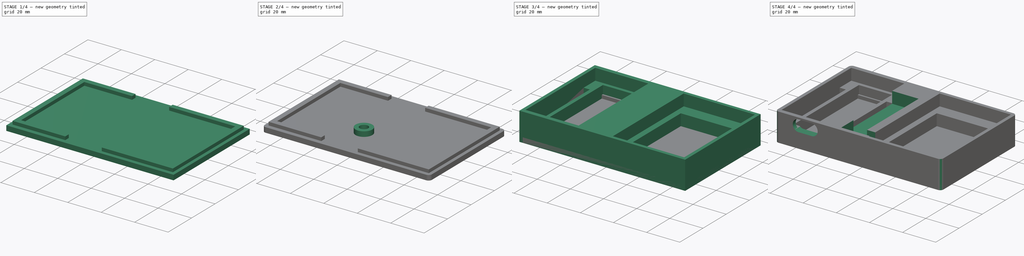
[diagram: build sequence overview — one tinted view per stage of 4, left to right]
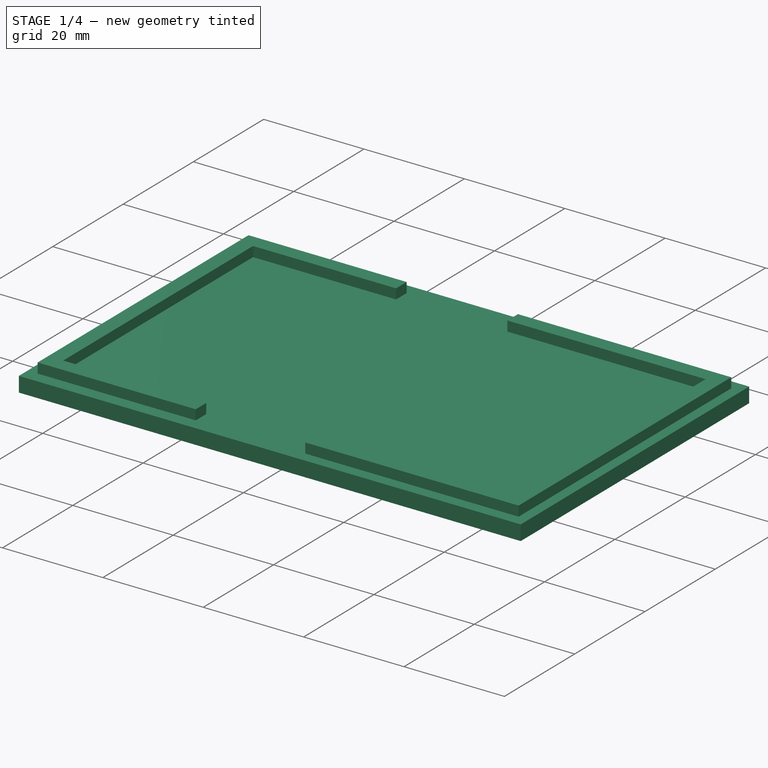
[diagram: stage 1 of 4 — iso view after this stage's code; geometry added in this stage tinted green]
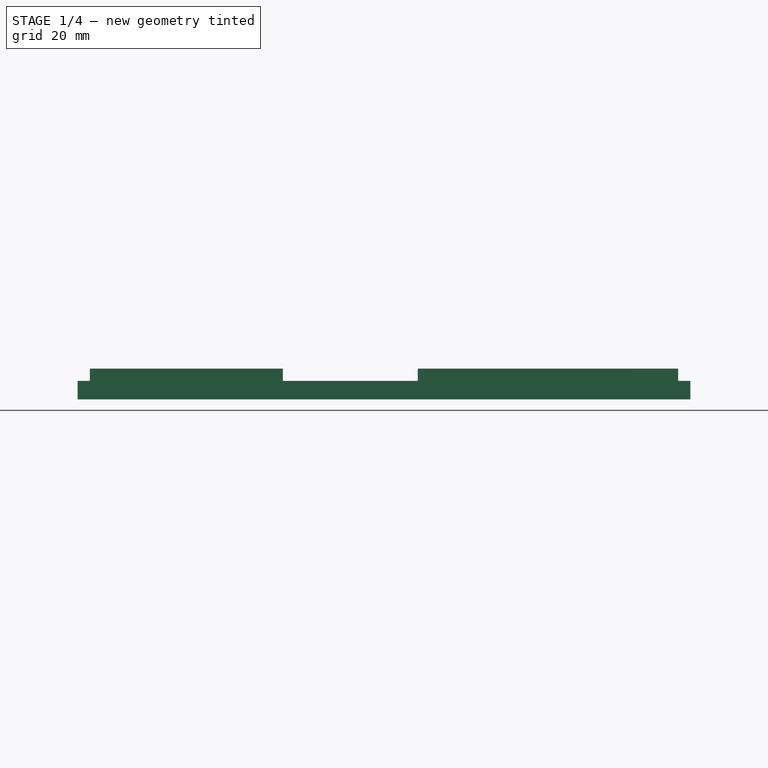
[diagram: stage 1 of 4 — front view after this stage's code; geometry added in this stage tinted green]
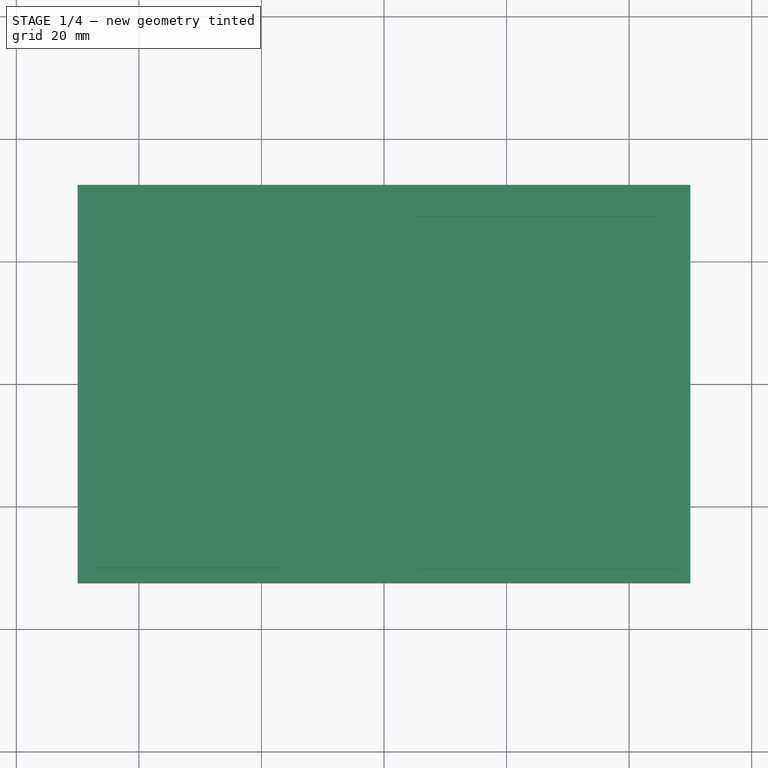
[diagram: stage 1 of 4 — top view after this stage's code; geometry added in this stage tinted green]
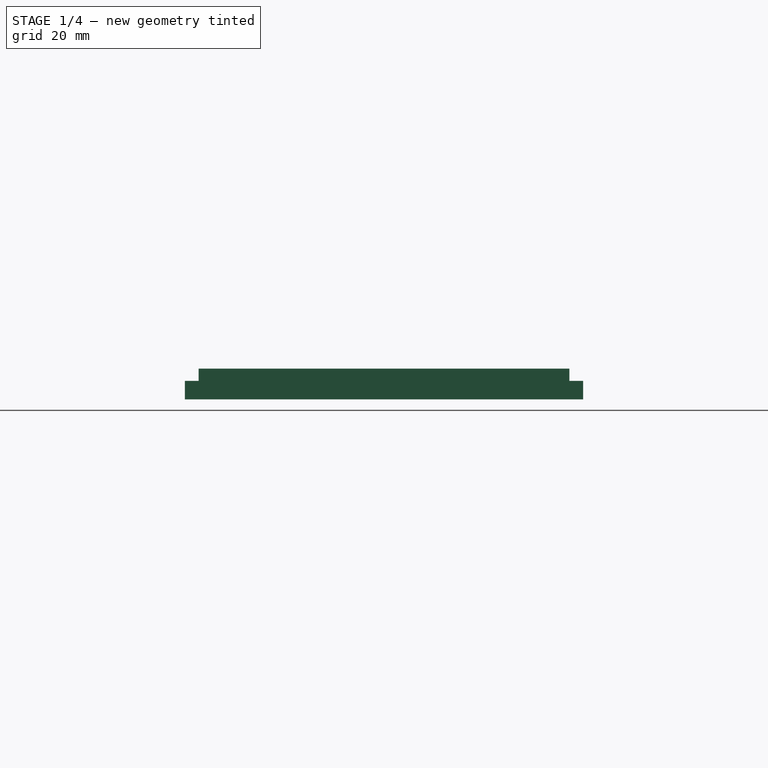
[diagram: stage 1 of 4 — right view after this stage's code; geometry added in this stage tinted green]
FCSTD DOCUMENT  (FreeCAD 0.18.4R)
Label: card-auth
License: All rights reserved
LicenseURL: http://en.wikipedia.org/wiki/All_rights_reserved
objects: Sketcher::SketchObject×10, PartDesign::Pocket×6, PartDesign::Pad×4, PartDesign::Fillet×3, PartDesign::Body×2
note: 35 computed .brp shape members not serialized (recipe doc carries the construction recipe); baked Part::Feature solids carry a one-line shape summary decoded from their .brp

FEATURE [PartDesign::Body] Body
  Group = -> [Sketch,Pad,Sketch001,Pocket,Sketch002,Pocket001,Sketch003,Pocket002,Sketch004,Pocket003,Sketch005,Pocket004,Fillet]
  Origin = -> Origin
  Tip = -> Fillet
FEATURE [Sketcher::SketchObject] Sketch006
  MapMode = 5
  Support = -> [XY_Plane001]
  sketch-geometry (4):
    g0: LineSegment StartX=-50 StartY=32.5 StartZ=0 EndX=50 EndY=32.5 EndZ=0
    g1: LineSegment StartX=50 StartY=32.5 StartZ=0 EndX=50 EndY=-32.5 EndZ=0
    g2: LineSegment StartX=50 StartY=-32.5 StartZ=0 EndX=-50 EndY=-32.5 EndZ=0
    g3: LineSegment StartX=-50 StartY=-32.5 StartZ=0 EndX=-50 EndY=32.5 EndZ=0
  constraints (10):
    c: Coincident(g0,g1)
    c: Coincident(g1,g2)
    c: Coincident(g2,g3)
    c: Coincident(g3,g0)
    c: Horizontal(g2)
    c: Vertical(g1)
    c: Symmetric(g0,g0,g-2)
    c: DistanceY(g3,g3) = 65
    c: Symmetric(g0,g2,g-1)
    c: DistanceX(g0,g0) = 100
FEATURE [PartDesign::Pad] Pad001
  Length = 3
  Length2 = 100
  Profile = -> Sketch006
  Type = 0
FEATURE [Sketcher::SketchObject] Sketch007
  MapMode = 5
  Placement = pos=(0,0,3) rot=(0,0,1;0rad)
  Support = -> [Pad001]
  sketch-geometry (16):
    g0: LineSegment StartX=-48 StartY=30 StartZ=0 EndX=-16.5 EndY=30 EndZ=0
    g1: LineSegment StartX=-16.5 StartY=-30 StartZ=0 EndX=-48 EndY=-30 EndZ=0
    g2: LineSegment StartX=-48 StartY=-30 StartZ=0 EndX=-48 EndY=30 EndZ=0
    g3: LineSegment StartX=-16.5 StartY=-30 StartZ=0 EndX=-16.5 EndY=-27 EndZ=0
    g4: LineSegment StartX=-16.5 StartY=-27 StartZ=0 EndX=-45 EndY=-27 EndZ=0
    g5: LineSegment StartX=-45 StartY=-27 StartZ=0 EndX=-45 EndY=27 EndZ=0
    g6: LineSegment StartX=-45 StartY=27 StartZ=0 EndX=-16.5 EndY=27 EndZ=0
    g7: LineSegment StartX=-16.5 StartY=27 StartZ=0 EndX=-16.5 EndY=30 EndZ=0
    g8: LineSegment StartX=5.5 StartY=30.25 StartZ=0 EndX=48 EndY=30.25 EndZ=0
    g9: LineSegment StartX=48 StartY=30.25 StartZ=0 EndX=48 EndY=-30.25 EndZ=0
    g10: LineSegment StartX=48 StartY=-30.25 StartZ=0 EndX=5.5 EndY=-30.25 EndZ=0
    g11: LineSegment StartX=5.5 StartY=30.25 StartZ=0 EndX=5.5 EndY=27.25 EndZ=0
    g12: LineSegment StartX=5.5 StartY=27.25 StartZ=0 EndX=45 EndY=27.25 EndZ=0
    g13: LineSegment StartX=45 StartY=27.25 StartZ=0 EndX=45 EndY=-27.25 EndZ=0
    g14: LineSegment StartX=45 StartY=-27.25 StartZ=0 EndX=5.5 EndY=-27.25 EndZ=0
    g15: LineSegment StartX=5.5 StartY=-27.25 StartZ=0 EndX=5.5 EndY=-30.25 EndZ=0
  constraints (45):
    c: Coincident(g1,g2)
    c: Coincident(g2,g0)
    c: Horizontal(g0)
    c: Horizontal(g1)
    c: Vertical(g2)
    c: Symmetric(g1,g0,g-1)
    c: DistanceX(g0,g-1) = 16.5
    c: DistanceX(g0,g0) = 31.5
    c: Coincident(g1,g3)
    c: Coincident(g3,g4)
    c: Horizontal(g4)
    c: Coincident(g4,g5)
    c: Vertical(g5)
    c: Coincident(g5,g6)
    c: Horizontal(g6)
    c: Coincident(g6,g7)
    c: Coincident(g7,g0)
    c: Vertical(g7)
    c: DistanceY(g7,g7) = 3
    c: Equal(g3,g7)
    c: DistanceX(g4,g4) = 28.5
    c: Vertical(g3)
    c: DistanceY(g2,g2) = 60
    c: Coincident(g8,g9)
    c: Coincident(g9,g10)
    c: Horizontal(g8)
    c: Horizontal(g10)
    c: Coincident(g8,g11)
    c: Coincident(g11,g12)
    c: Horizontal(g12)
    c: Coincident(g12,g13)
    c: Coincident(g13,g14)
    c: Horizontal(g14)
    c: Coincident(g14,g15)
    c: Coincident(g15,g10)
    c: Vertical(g15)
    c: Vertical(g11)
    c: DistanceY(g9,g9) = 60.5
    c: Symmetric(g9,g8,g-1)
    c: DistanceX(g12,g8) = 3
    c: DistanceY(g12,g8) = 3
    c: Symmetric(g12,g13,g-1)
    c: DistanceX(g-1,g8) = 48
    c: DistanceX(g8,g8) = 42.5
    c: Equal(g8,g10)
FEATURE [PartDesign::Pad] Pad002
  BaseFeature = -> Pad001
  Length = 2
  Length2 = 100
  Profile = -> Sketch007
  Type = 0
FEATURE [PartDesign::Fillet] Fillet002
  Base = -> Pad001 [Edge1,Edge8,Edge2,Edge5]
  BaseFeature = -> Pad001
  Radius = 2
FEATURE [PartDesign::Body] Body001
  Group = -> [Sketch006,Pad001,Sketch007,Pad002,Fillet001,Sketch009,Pad003,Sketch010,Pocket005,Fillet002]
  Origin = -> Origin001
  Placement = pos=(0,0,20) rot=(1,0,0;3.14159rad)
  Tip = -> Fillet002
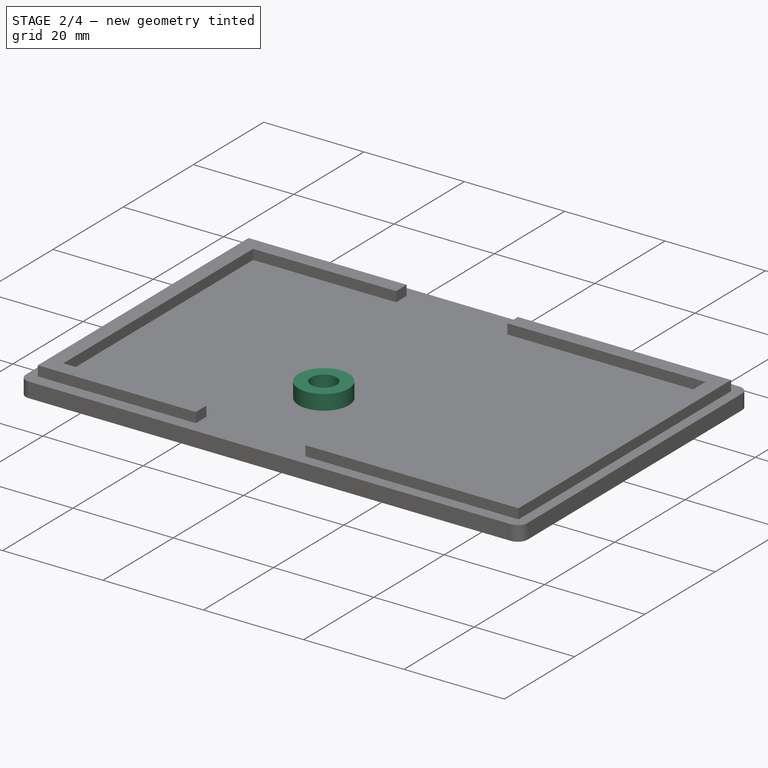
[diagram: stage 2 of 4 — iso view after this stage's code; geometry added in this stage tinted green]
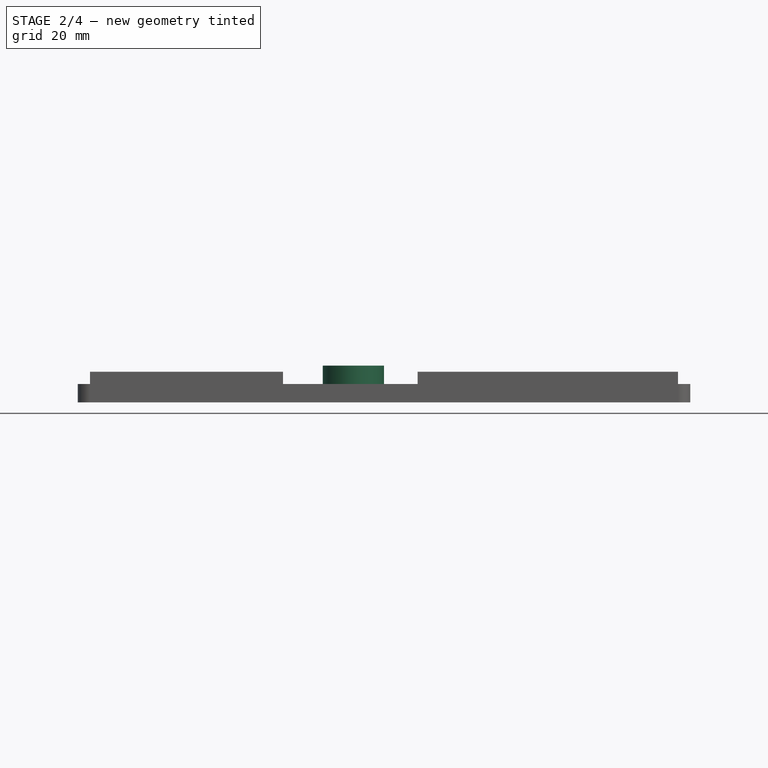
[diagram: stage 2 of 4 — front view after this stage's code; geometry added in this stage tinted green]
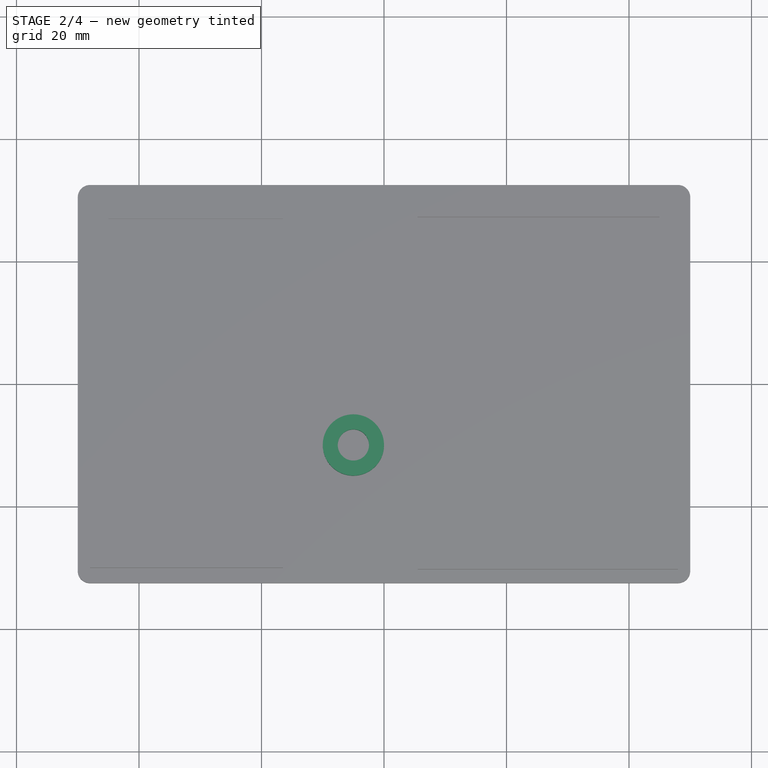
[diagram: stage 2 of 4 — top view after this stage's code; geometry added in this stage tinted green]
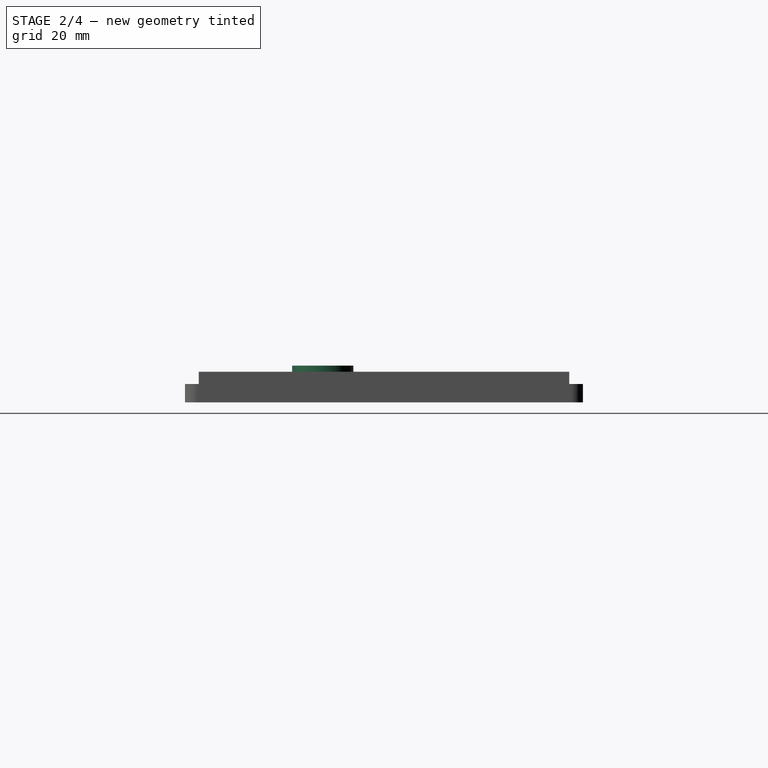
[diagram: stage 2 of 4 — right view after this stage's code; geometry added in this stage tinted green]
FEATURE [PartDesign::Fillet] Fillet001
  Base = -> Pad002 [Edge8,Edge5,Edge1,Edge2]
  BaseFeature = -> Pad002
  Radius = 2
FEATURE [Sketcher::SketchObject] Sketch009
  MapMode = 5
  Placement = pos=(0,0,3) rot=(0,0,1;0rad)
  Support = -> [Fillet001]
  sketch-geometry (1):
    g0: Circle CenterX=-5 CenterY=-10 CenterZ=0 NormalX=0 NormalY=0 NormalZ=1 AngleXU=0 Radius=5
  constraints (3):
    c: DistanceX(g0,g-1) = 5
    c: DistanceY(g0,g-1) = 10
    c: Radius(g0) = 5
FEATURE [PartDesign::Pad] Pad003
  BaseFeature = -> Fillet001
  Length = 3
  Length2 = 100
  Profile = -> Sketch009
  Type = 0
FEATURE [Sketcher::SketchObject] Sketch010
  MapMode = 5
  Placement = pos=(0,0,6) rot=(0,0,1;0rad)
  Support = -> [Pad003]
  sketch-geometry (1):
    g0: Circle CenterX=-5 CenterY=-10 CenterZ=0 NormalX=0 NormalY=0 NormalZ=1 AngleXU=0 Radius=2.55
  constraints (3):
    c: DistanceX(g0,g-1) = 5
    c: DistanceY(g0,g-1) = 10
    c: Radius(g0) = 2.55
FEATURE [PartDesign::Pocket] Pocket005
  BaseFeature = -> Pad003
  Length = 10
  Length2 = 100
  Profile = -> Sketch010
  Type = 0
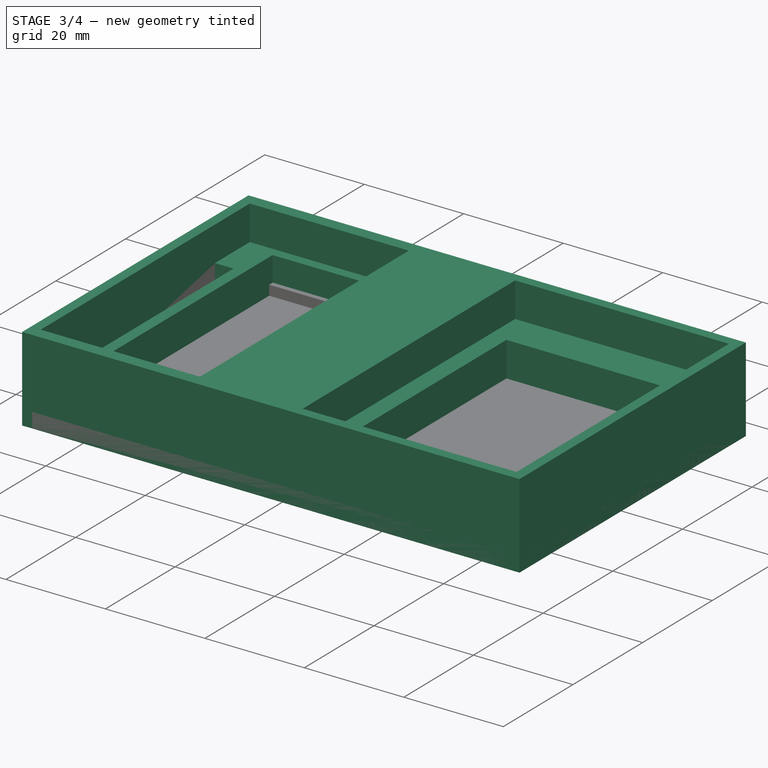
[diagram: stage 3 of 4 — iso view after this stage's code; geometry added in this stage tinted green]
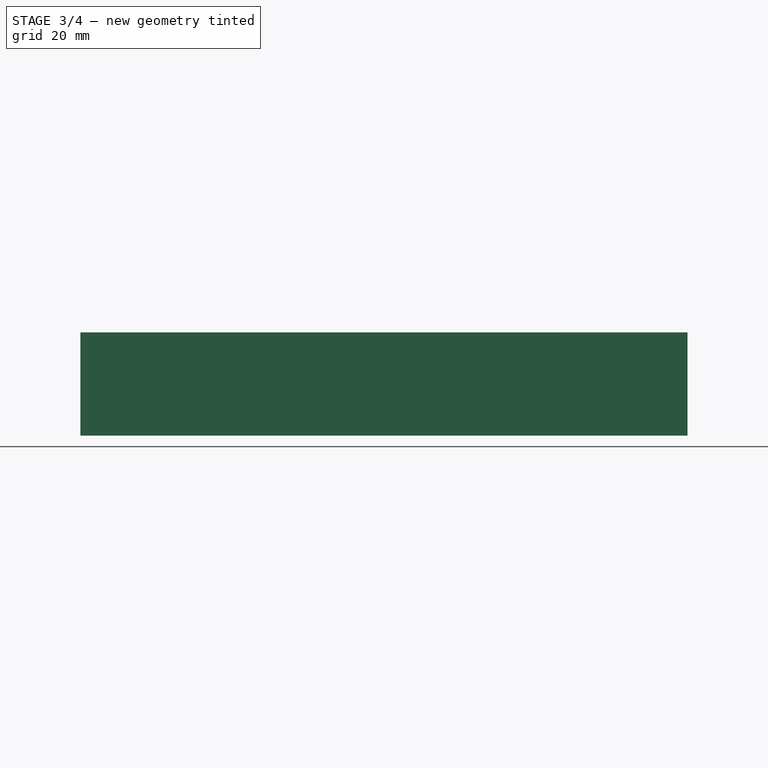
[diagram: stage 3 of 4 — front view after this stage's code; geometry added in this stage tinted green]
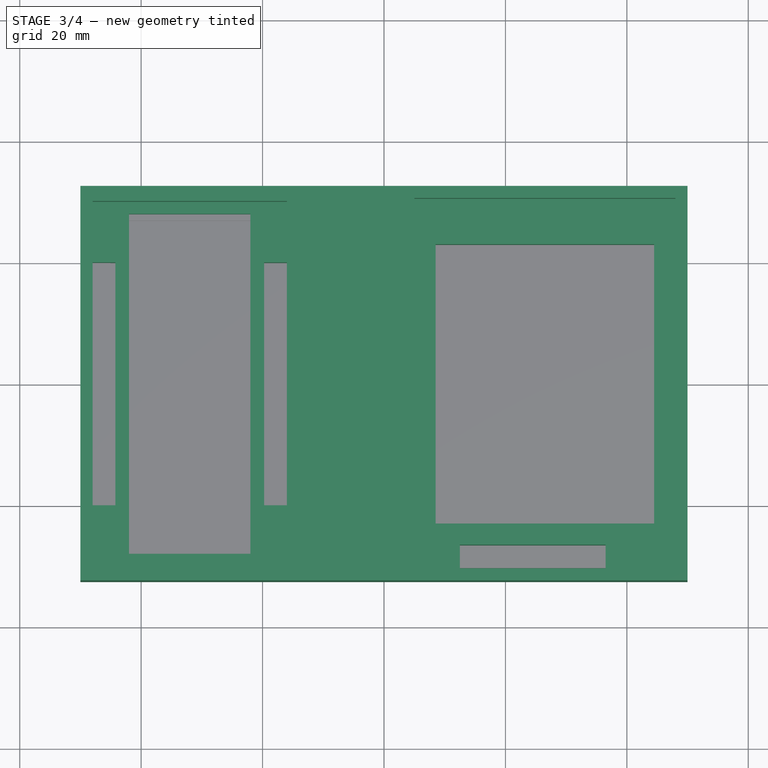
[diagram: stage 3 of 4 — top view after this stage's code; geometry added in this stage tinted green]
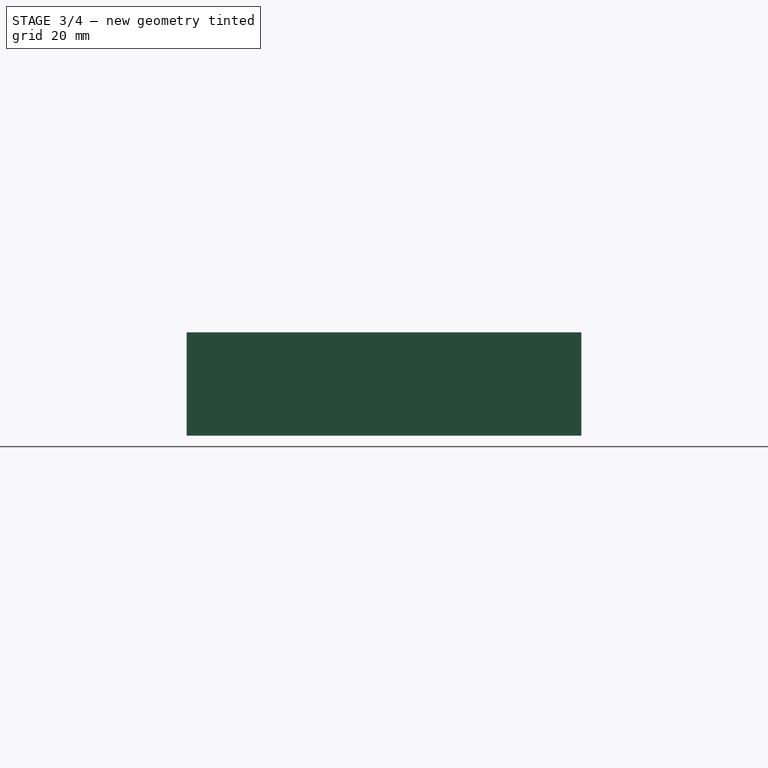
[diagram: stage 3 of 4 — right view after this stage's code; geometry added in this stage tinted green]
FEATURE [Sketcher::SketchObject] Sketch
  MapMode = 5
  Support = -> [XY_Plane]
  sketch-geometry (4):
    g0: LineSegment StartX=-50 StartY=32.5 StartZ=0 EndX=50 EndY=32.5 EndZ=0
    g1: LineSegment StartX=50 StartY=32.5 StartZ=0 EndX=50 EndY=-32.5 EndZ=0
    g2: LineSegment StartX=50 StartY=-32.5 StartZ=0 EndX=-50 EndY=-32.5 EndZ=0
    g3: LineSegment StartX=-50 StartY=-32.5 StartZ=0 EndX=-50 EndY=32.5 EndZ=0
  constraints (12):
    c: Coincident(g0,g1)
    c: Coincident(g1,g2)
    c: Coincident(g2,g3)
    c: Coincident(g3,g0)
    c: Horizontal(g0)
    c: Horizontal(g2)
    c: Vertical(g1)
    c: Vertical(g3)
    c: DistanceX(g0,g0) = 100
    c: DistanceY(g3,g3) = 65
    c: DistanceX(g0,g-1) = 50
    c: DistanceY(g-1,g0) = 32.5
FEATURE [PartDesign::Pad] Pad
  Length = 17
  Length2 = 100
  Profile = -> Sketch
  Type = 0
FEATURE [Sketcher::SketchObject] Sketch001
  MapMode = 5
  Placement = pos=(0,0,17) rot=(0,0,1;0rad)
  Support = -> [Pad]
  sketch-geometry (8):
    g0: LineSegment StartX=-48 StartY=30 StartZ=0 EndX=-16 EndY=30 EndZ=0
    g1: LineSegment StartX=-16 StartY=30 StartZ=0 EndX=-16 EndY=-30 EndZ=0
    g2: LineSegment StartX=-16 StartY=-30 StartZ=0 EndX=-48 EndY=-30 EndZ=0
    g3: LineSegment StartX=-48 StartY=-30 StartZ=0 EndX=-48 EndY=30 EndZ=0
    g4: LineSegment StartX=48 StartY=30.5 StartZ=0 EndX=5 EndY=30.5 EndZ=0
    g5: LineSegment StartX=5 StartY=30.5 StartZ=0 EndX=5 EndY=-30.5 EndZ=0
    g6: LineSegment StartX=5 StartY=-30.5 StartZ=0 EndX=48 EndY=-30.5 EndZ=0
    g7: LineSegment StartX=48 StartY=-30.5 StartZ=0 EndX=48 EndY=30.5 EndZ=0
  constraints (22):
    c: Coincident(g0,g1)
    c: Coincident(g1,g2)
    c: Coincident(g2,g3)
    c: Coincident(g3,g0)
    c: Horizontal(g0)
    c: Horizontal(g2)
    c: Vertical(g3)
    c: DistanceY(g3,g3) = 60
    c: DistanceX(g0,g0) = 32
    c: Symmetric(g1,g0,g-1)
    c: DistanceX(g0,g-1) = 16
    c: Coincident(g4,g5)
    c: Coincident(g5,g6)
    c: Coincident(g6,g7)
    c: Coincident(g7,g4)
    c: Horizontal(g4)
    c: Horizontal(g6)
    c: Vertical(g7)
    c: DistanceX(g4,g4) = 43
    c: DistanceY(g5,g5) = 61
    c: Symmetric(g4,g5,g-1)
    c: DistanceX(g-1,g4) = 5
FEATURE [PartDesign::Pocket] Pocket
  BaseFeature = -> Pad
  Length = 7
  Length2 = 100
  Profile = -> Sketch001
  Type = 0
FEATURE [Sketcher::SketchObject] Sketch002
  MapMode = 5
  Placement = pos=(0,0,10) rot=(0,0,1;0rad)
  Support = -> [Pocket]
  sketch-geometry (12):
    g0: LineSegment StartX=-48 StartY=20 StartZ=0 EndX=-44.25 EndY=20 EndZ=0
    g1: LineSegment StartX=-44.25 StartY=20 StartZ=0 EndX=-44.25 EndY=-20 EndZ=0
    g2: LineSegment StartX=-44.25 StartY=-20 StartZ=0 EndX=-48 EndY=-20 EndZ=0
    g3: LineSegment StartX=-48 StartY=-20 StartZ=0 EndX=-48 EndY=20 EndZ=0
    g4: LineSegment StartX=-16 StartY=20 StartZ=0 EndX=-19.75 EndY=20 EndZ=0
    g5: LineSegment StartX=-19.75 StartY=20 StartZ=0 EndX=-19.75 EndY=-20 EndZ=0
    g6: LineSegment StartX=-19.75 StartY=-20 StartZ=0 EndX=-16 EndY=-20 EndZ=0
    g7: LineSegment StartX=-16 StartY=-20 StartZ=0 EndX=-16 EndY=20 EndZ=0
    g8: LineSegment StartX=-42 StartY=28 StartZ=0 EndX=-22 EndY=28 EndZ=0
    g9: LineSegment StartX=-22 StartY=28 StartZ=0 EndX=-22 EndY=-28 EndZ=0
    g10: LineSegment StartX=-22 StartY=-28 StartZ=0 EndX=-42 EndY=-28 EndZ=0
    g11: LineSegment StartX=-42 StartY=-28 StartZ=0 EndX=-42 EndY=28 EndZ=0
  constraints (33):
    c: Coincident(g0,g1)
    c: Coincident(g1,g2)
    c: Coincident(g2,g3)
    c: Coincident(g3,g0)
    c: Horizontal(g0)
    c: Horizontal(g2)
    c: Vertical(g3)
    c: Coincident(g4,g5)
    c: Coincident(g5,g6)
    c: Coincident(g6,g7)
    c: Coincident(g7,g4)
    c: Horizontal(g4)
    c: Horizontal(g6)
    c: Vertical(g7)
    c: Equal(g0,g4)
    c: DistanceX(g0,g0) = 3.75
    c: Symmetric(g0,g1,g-1)
    c: Symmetric(g4,g5,g-1)
    c: DistanceX(g0,g4) = 32
    c: DistanceX(g4,g-1) = 16
    c: DistanceY(g1,g1) = 40
    c: Equal(g1,g5)
    c: Coincident(g8,g9)
    c: Coincident(g9,g10)
    c: Coincident(g10,g11)
    c: Coincident(g11,g8)
    c: Horizontal(g8)
    c: Horizontal(g10)
    c: Vertical(g11)
    c: DistanceX(g8,g8) = 20
    c: DistanceY(g11,g11) = 56
    c: Symmetric(g8,g9,g-1)
    c: DistanceX(g8,g4) = 6
FEATURE [PartDesign::Pocket] Pocket001
  BaseFeature = -> Pocket
  Length = 8.5
  Length2 = 100
  Profile = -> Sketch002
  Type = 0
FEATURE [Sketcher::SketchObject] Sketch003
  MapMode = 5
  Placement = pos=(0,0,10) rot=(0,0,1;0rad)
  Support = -> [Pocket001]
  sketch-geometry (8):
    g0: LineSegment StartX=12.5 StartY=-26.5 StartZ=0 EndX=36.5 EndY=-26.5 EndZ=0
    g1: LineSegment StartX=36.5 StartY=-26.5 StartZ=0 EndX=36.5 EndY=-30.5 EndZ=0
    g2: LineSegment StartX=36.5 StartY=-30.5 StartZ=0 EndX=12.5 EndY=-30.5 EndZ=0
    g3: LineSegment StartX=12.5 StartY=-30.5 StartZ=0 EndX=12.5 EndY=-26.5 EndZ=0
    g4: LineSegment StartX=8.5 StartY=23 StartZ=0 EndX=44.5 EndY=23 EndZ=0
    g5: LineSegment StartX=44.5 StartY=23 StartZ=0 EndX=44.5 EndY=-23 EndZ=0
    g6: LineSegment StartX=44.5 StartY=-23 StartZ=0 EndX=8.5 EndY=-23 EndZ=0
    g7: LineSegment StartX=8.5 StartY=-23 StartZ=0 EndX=8.5 EndY=23 EndZ=0
  constraints (23):
    c: Coincident(g0,g1)
    c: Coincident(g1,g2)
    c: Coincident(g2,g3)
    c: Coincident(g3,g0)
    c: Horizontal(g0)
    c: Horizontal(g2)
    c: Vertical(g1)
    c: Vertical(g3)
    c: DistanceY(g3,g3) = 4
    c: DistanceX(g0,g0) = 24
    c: DistanceY(g2,g-1) = 30.5
    c: Coincident(g4,g5)
    c: Coincident(g5,g6)
    c: Coincident(g6,g7)
    c: Coincident(g7,g4)
    c: Horizontal(g4)
    c: Horizontal(g6)
    c: Vertical(g5)
    c: DistanceY(g7,g7) = 46
    c: DistanceX(g4,g4) = 36
    c: Symmetric(g4,g6,g-1)
    c: DistanceX(g-1,g6) = 8.5
    c: DistanceX(g-1,g0) = 12.5
FEATURE [PartDesign::Pocket] Pocket002
  BaseFeature = -> Pocket001
  Length = 8.5
  Length2 = 100
  Profile = -> Sketch003
  Type = 0
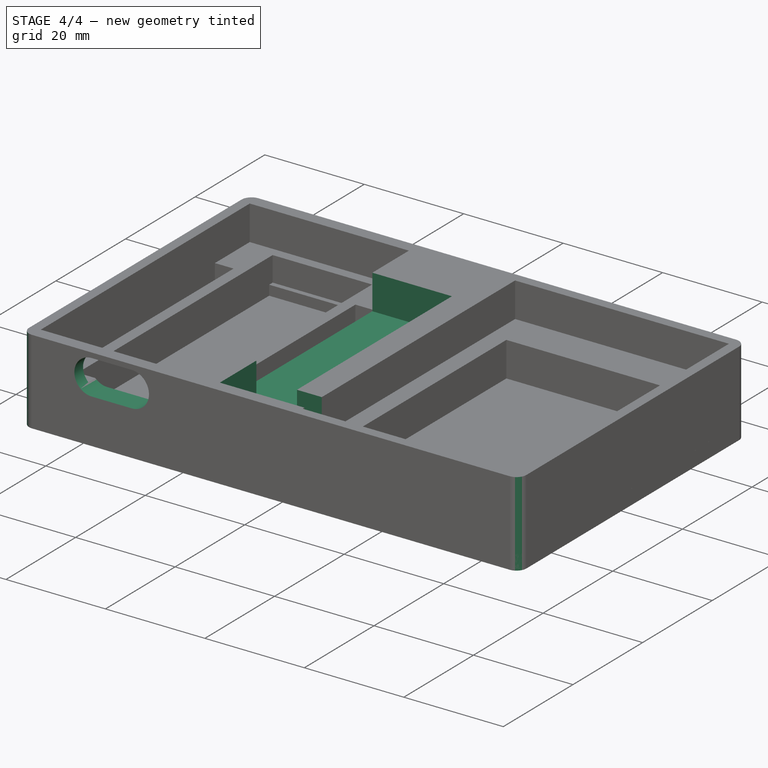
[diagram: stage 4 of 4 — iso view after this stage's code; geometry added in this stage tinted green]
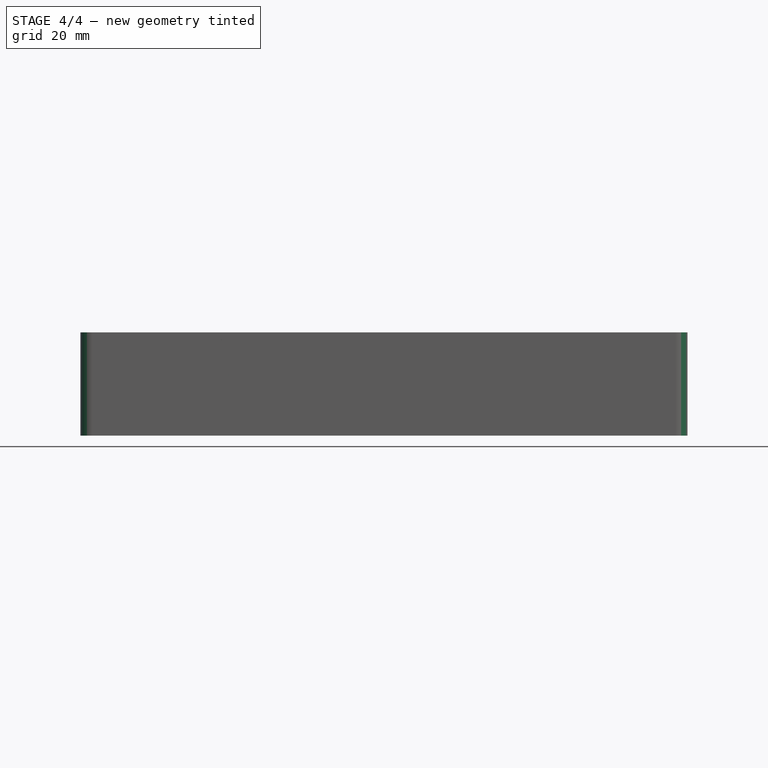
[diagram: stage 4 of 4 — front view after this stage's code; geometry added in this stage tinted green]
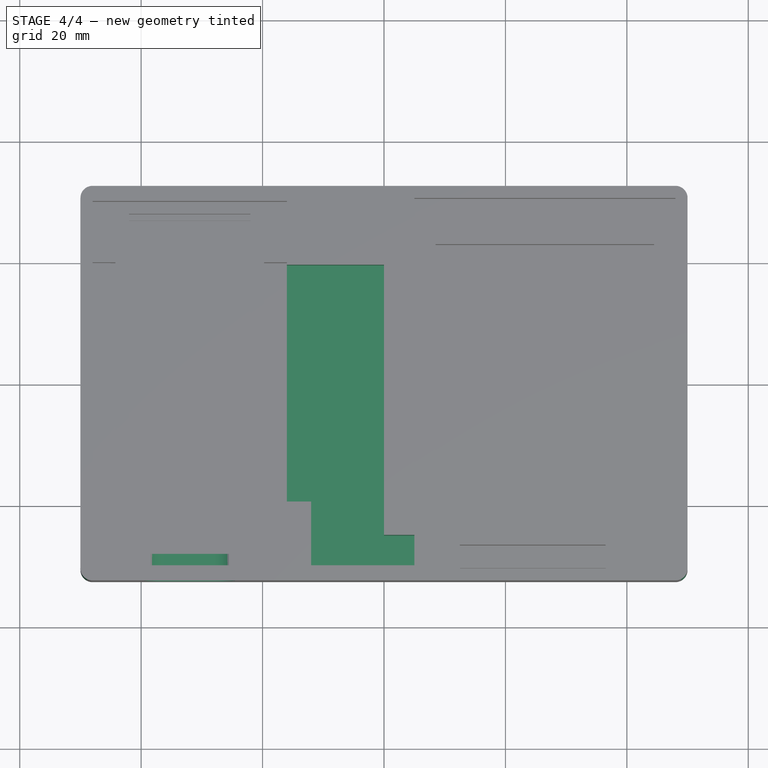
[diagram: stage 4 of 4 — top view after this stage's code; geometry added in this stage tinted green]
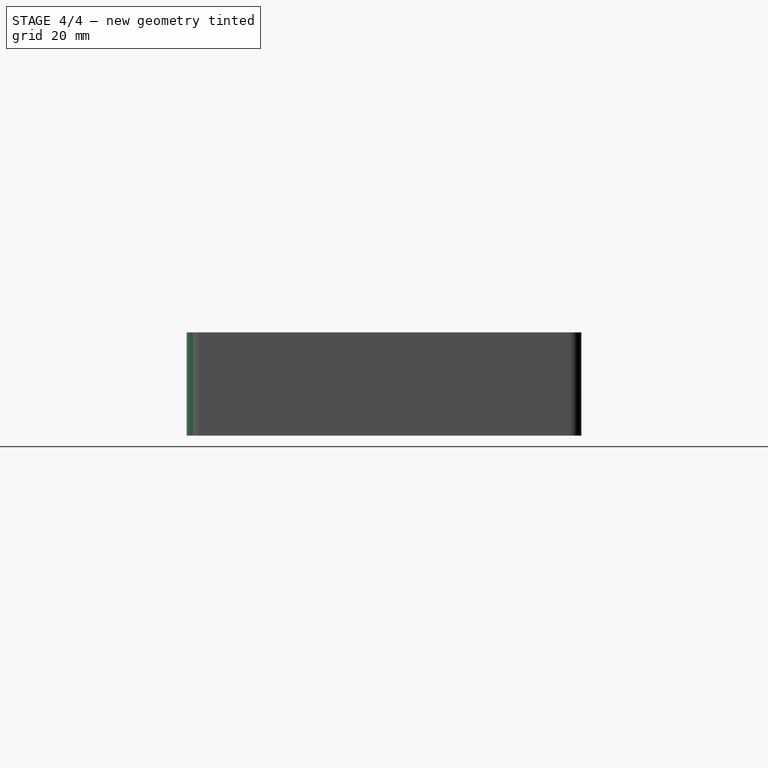
[diagram: stage 4 of 4 — right view after this stage's code; geometry added in this stage tinted green]
FEATURE [Sketcher::SketchObject] Sketch004
  MapMode = 5
  Placement = pos=(0,0,17) rot=(0,0,1;0rad)
  Support = -> [Pocket002]
  sketch-geometry (8):
    g0: LineSegment StartX=-16 StartY=19.5 StartZ=0 EndX=0 EndY=19.5 EndZ=0
    g1: LineSegment StartX=0 StartY=19.5 StartZ=0 EndX=0 EndY=-25 EndZ=0
    g2: LineSegment StartX=0 StartY=-25 StartZ=0 EndX=5 EndY=-25 EndZ=0
    g3: LineSegment StartX=5 StartY=-25 StartZ=0 EndX=5 EndY=-30 EndZ=0
    g4: LineSegment StartX=5 StartY=-30 StartZ=0 EndX=-12 EndY=-30 EndZ=0
    g5: LineSegment StartX=-12 StartY=-30 StartZ=0 EndX=-12 EndY=-19.5 EndZ=0
    g6: LineSegment StartX=-12 StartY=-19.5 StartZ=0 EndX=-16 EndY=-19.5 EndZ=0
    g7: LineSegment StartX=-16 StartY=-19.5 StartZ=0 EndX=-16 EndY=19.5 EndZ=0
  constraints (24):
    c: PointOnObject(g0,g-2)
    c: Horizontal(g0)
    c: Coincident(g0,g1)
    c: Vertical(g1)
    c: Coincident(g1,g2)
    c: Horizontal(g2)
    c: Coincident(g2,g3)
    c: Vertical(g3)
    c: Coincident(g3,g4)
    c: Horizontal(g4)
    c: Coincident(g4,g5)
    c: Vertical(g5)
    c: Coincident(g5,g6)
    c: Horizontal(g6)
    c: Coincident(g6,g7)
    c: Coincident(g7,g0)
    c: Vertical(g7)
    c: DistanceY(g-1,g0) = 19.5
    c: DistanceX(g0,g0) = 16
    c: DistanceY(g7,g7) = 39
    c: DistanceX(g6,g6) = 4
    c: DistanceY(g5,g5) = 10.5
    c: DistanceX(g4,g4) = 17
    c: DistanceY(g3,g3) = 5
FEATURE [PartDesign::Pocket] Pocket003
  BaseFeature = -> Pocket002
  Length = 7
  Length2 = 100
  Profile = -> Sketch004
  Type = 0
FEATURE [Sketcher::SketchObject] Sketch005
  MapMode = 5
  Placement = pos=(0,-32.5,0) rot=(1,0,0;1.5708rad)
  Support = -> [Pocket003]
  sketch-geometry (4):
    g0: ArcOfCircle CenterX=-36 CenterY=12.5 CenterZ=0 NormalX=0 NormalY=0 NormalZ=1 AngleXU=0 Radius=3.5 StartAngle=1.5708 EndAngle=4.71239
    g1: ArcOfCircle CenterX=-28 CenterY=12.5 CenterZ=0 NormalX=0 NormalY=0 NormalZ=1 AngleXU=0 Radius=3.5 StartAngle=4.71239 EndAngle=7.85398
    g2: LineSegment StartX=-36 StartY=9 StartZ=0 EndX=-28 EndY=9 EndZ=0
    g3: LineSegment StartX=-36 StartY=16 StartZ=0 EndX=-28 EndY=16 EndZ=0
  constraints (10):
    c: Tangent(g0,g3) = 1.5708
    c: Tangent(g0,g2) = -1.5708
    c: Tangent(g2,g1) = -1.5708
    c: Tangent(g3,g1) = 1.5708
    c: Horizontal(g2)
    c: Equal(g0,g1)
    c: DistanceX(g1,g-1) = 28
    c: DistanceX(g0,g1) = 8
    c: DistanceY(g0,g0) = 7
    c: DistanceY(g-1,g1) = 12.5
FEATURE [PartDesign::Pocket] Pocket004
  BaseFeature = -> Pocket003
  Length = 6
  Length2 = 100
  Profile = -> Sketch005
  Type = 0
FEATURE [PartDesign::Fillet] Fillet
  Base = -> Pocket004 [Edge8,Edge2,Edge1,Edge5]
  BaseFeature = -> Pocket004
  Radius = 2
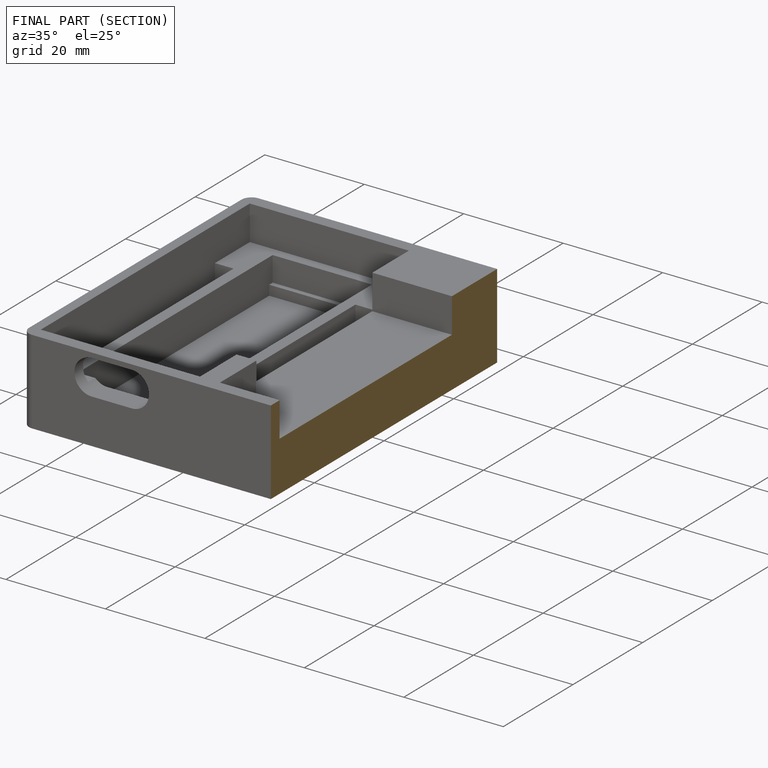
[diagram: finished part — half-section view (interior)]
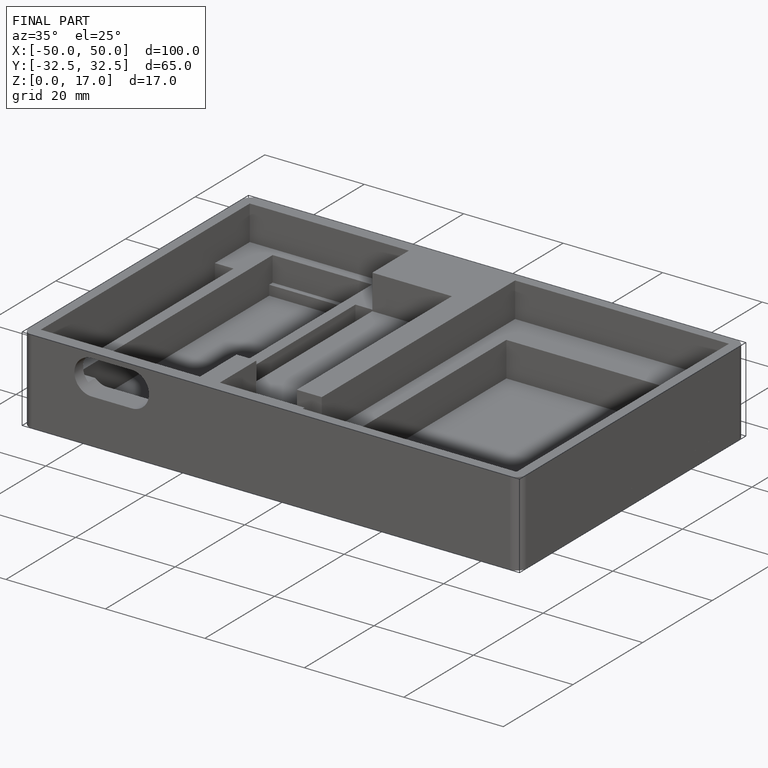
[diagram: finished part — iso view with bounding-box wireframe]
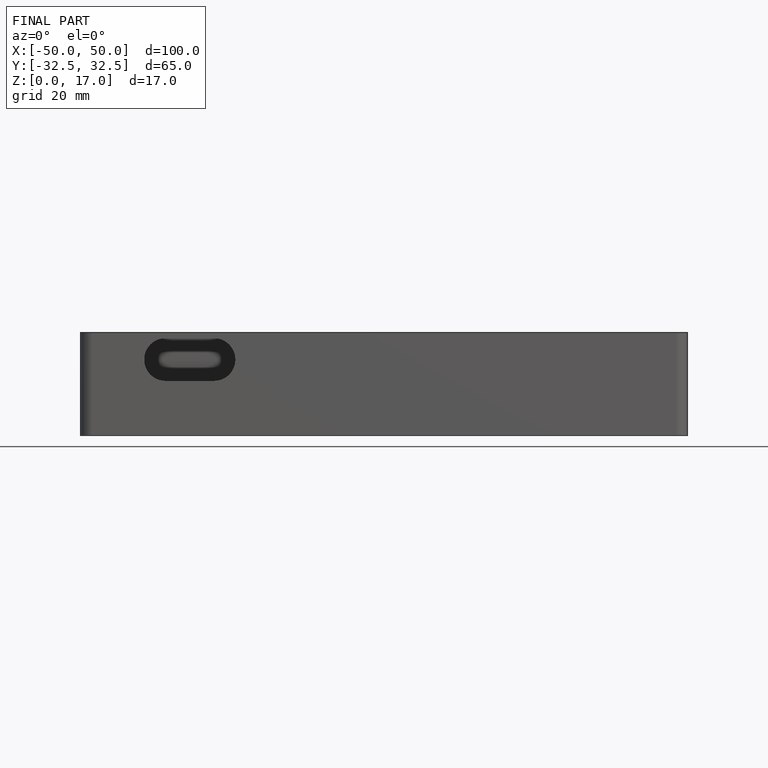
[diagram: finished part — front view with bounding-box wireframe]
